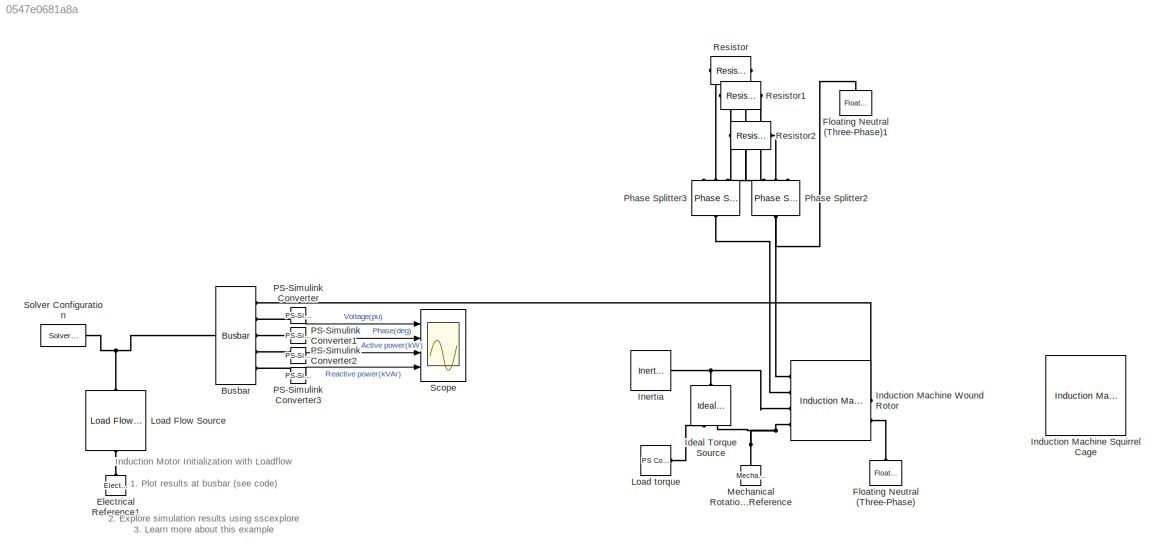
MODEL slx_0547e0681a8a
KIND model
CONFIG AbsTol = auto
CONFIG EnableMultiTasking = off
CONFIG FixedStep = auto
CONFIG MaxStep = auto
CONFIG MinStep = auto
CONFIG RelTol = 1e-3
CONFIG SampleTimeConstraint = Unconstrained
CONFIG SolverName = VariableStepAuto
CONFIG StartTime = 0.0
CONFIG StopTime = 1
BLOCK [Reference] Busbar  REF=ee_lib/Connectors &
References/Busbar
  AttributesFormatString = %<Tag>
  Ports = [0, 0, 0, 0, 0, 1, 5]
  SourceBlock = ee_lib/Connectors &\nReferences/Busbar
  SourceProductBaseCode = PS
  SourceType = Busbar
BLOCK [Reference] Electrical Reference1  REF=fl_lib/Electrical/Electrical Elements/Electrical Reference
  NameLocation = right
  Ports = [0, 0, 0, 0, 0, 1]
  SourceBlock = fl_lib/Electrical/Electrical Elements/Electrical Reference
  SourceProductBaseCode = SS
  SourceType = Electrical Reference
BLOCK [Reference] Floating Neutral (Three-Phase)  REF=ee_lib/Connectors &
References/Floating Neutral
(Three-Phase)
  NameLocation = right
  Ports = [0, 0, 0, 0, 0, 1]
  SourceBlock = ee_lib/Connectors &\nReferences/Floating Neutral\n(Three-Phase)
  SourceProductBaseCode = PS
  SourceType = Floating Neutral\n(Three-Phase)
BLOCK [Reference] Floating Neutral (Three-Phase)1  REF=ee_lib/Connectors &
References/Floating Neutral
(Three-Phase)
  NameLocation = right
  Ports = [0, 0, 0, 0, 0, 1]
  SourceBlock = ee_lib/Connectors &\nReferences/Floating Neutral\n(Three-Phase)
  SourceProductBaseCode = PS
  SourceType = Floating Neutral\n(Three-Phase)
BLOCK [Reference] Ideal Torque Source  REF=fl_lib/Mechanical/Mechanical Sources/Ideal Torque Source
  NameLocation = right
  Ports = [0, 0, 0, 0, 0, 1, 2]
  SourceBlock = fl_lib/Mechanical/Mechanical Sources/Ideal Torque Source
  SourceProductBaseCode = SS
  SourceType = Ideal Torque Source
BLOCK [Reference] Induction Machine Squirrel Cage  REF=ee_lib/Electromechanical/Asynchronous/Induction Machine
Squirrel Cage
  Commented = on
  Ports = [0, 0, 0, 0, 0, 2, 3]
  SourceBlock = ee_lib/Electromechanical/Asynchronous/Induction Machine\nSquirrel Cage
  SourceProductBaseCode = PS
  SourceType = Induction Machine\nSquirrel Cage
BLOCK [Reference] Induction Machine Wound Rotor  REF=ee_lib/Electromechanical/Asynchronous/Induction Machine
Wound Rotor
  Ports = [0, 0, 0, 0, 0, 4, 3]
  SourceBlock = ee_lib/Electromechanical/Asynchronous/Induction Machine\nWound Rotor
  SourceProductBaseCode = PS
  SourceType = Induction Machine\nWound Rotor
BLOCK [Reference] Inertia  REF=fl_lib/Mechanical/Rotational Elements/Inertia
  Ports = [0, 0, 0, 0, 0, 1]
  SourceBlock = fl_lib/Mechanical/Rotational Elements/Inertia
  SourceProductBaseCode = SS
  SourceType = Inertia
BLOCK [Reference] Load Flow Source  REF=ee_lib/Sources/Load Flow Source
  NameLocation = left
  Ports = [0, 0, 0, 0, 0, 1, 1]
  SourceBlock = ee_lib/Sources/Load Flow Source
  SourceProductBaseCode = PS
  SourceType = Load Flow Source
BLOCK [Reference] Load torque  REF=fl_lib/Physical Signals/Sources/PS Constant
  Ports = [0, 0, 0, 0, 0, 0, 1]
  SourceBlock = fl_lib/Physical Signals/Sources/PS Constant
  SourceProductBaseCode = SS
  SourceType = PS Constant
BLOCK [Reference] Mechanical Rotational Reference  REF=fl_lib/Mechanical/Rotational Elements/Mechanical
Rotational Reference
  NameLocation = right
  Ports = [0, 0, 0, 0, 0, 1]
  SourceBlock = fl_lib/Mechanical/Rotational Elements/Mechanical\nRotational Reference
  SourceProductBaseCode = SS
  SourceType = Mechanical\nRotational Reference
BLOCK [Reference] PS-Simulink Converter  REF=nesl_utility/PS-Simulink
Converter
  Ports = [0, 1, 0, 0, 0, 1]
  SourceBlock = nesl_utility/PS-Simulink\nConverter
  SourceProductBaseCode = PW,SS
  SourceType = PS-Simulink\nConverter
BLOCK [Reference] PS-Simulink Converter1  REF=nesl_utility/PS-Simulink
Converter
  Ports = [0, 1, 0, 0, 0, 1]
  SourceBlock = nesl_utility/PS-Simulink\nConverter
  SourceProductBaseCode = PW,SS
  SourceType = PS-Simulink\nConverter
BLOCK [Reference] PS-Simulink Converter2  REF=nesl_utility/PS-Simulink
Converter
  Ports = [0, 1, 0, 0, 0, 1]
  SourceBlock = nesl_utility/PS-Simulink\nConverter
  SourceProductBaseCode = PW,SS
  SourceType = PS-Simulink\nConverter
BLOCK [Reference] PS-Simulink Converter3  REF=nesl_utility/PS-Simulink
Converter
  Ports = [0, 1, 0, 0, 0, 1]
  SourceBlock = nesl_utility/PS-Simulink\nConverter
  SourceProductBaseCode = PW,SS
  SourceType = PS-Simulink\nConverter
BLOCK [Reference] Phase Splitter2  REF=ee_lib/Connectors &
References/Phase Splitter
  NameLocation = right
  Ports = [0, 0, 0, 0, 0, 1, 3]
  SourceBlock = ee_lib/Connectors &\nReferences/Phase Splitter
  SourceProductBaseCode = PS
  SourceType = Phase Splitter
BLOCK [Reference] Phase Splitter3  REF=ee_lib/Connectors &
References/Phase Splitter
  NameLocation = right
  Ports = [0, 0, 0, 0, 0, 1, 3]
  SourceBlock = ee_lib/Connectors &\nReferences/Phase Splitter
  SourceProductBaseCode = PS
  SourceType = Phase Splitter
BLOCK [Reference] Resistor  REF=ee_lib/Passive/Resistor
  Ports = [0, 0, 0, 0, 0, 1, 1]
  SourceBlock = ee_lib/Passive/Resistor
  SourceProductBaseCode = PS
  SourceType = Resistor
BLOCK [Reference] Resistor1  REF=ee_lib/Passive/Resistor
  Ports = [0, 0, 0, 0, 0, 1, 1]
  SourceBlock = ee_lib/Passive/Resistor
  SourceProductBaseCode = PS
  SourceType = Resistor
BLOCK [Reference] Resistor2  REF=ee_lib/Passive/Resistor
  Ports = [0, 0, 0, 0, 0, 1, 1]
  SourceBlock = ee_lib/Passive/Resistor
  SourceProductBaseCode = PS
  SourceType = Resistor
BLOCK [Scope] Scope
  Floating = off
  NumInputPorts = 4
  Ports = [4]
  ScopeSpecificationString = Simulink.scopes.TimeScopeBlockCfg('CurrentConfiguration', extmgr.ConfigurationSet(extmgr.Configuration('Core','General UI',true),extmgr.Configuration('Core','Source UI',true),extmgr.Configuration('Sources','WiredSimulink',true),extmgr.Configuration('Visuals','Time Domain',true,'SerializedDisplays',{struct('MinYLimReal','0.9799999999999991','MaxYLimReal','0.9800000000000011','YLabelReal','','MinYLi...<+3516ch>
BLOCK [Reference] Solver Configuration  REF=nesl_utility/Solver
Configuration
  Ports = [0, 0, 0, 0, 0, 0, 1]
  SourceBlock = nesl_utility/Solver\nConfiguration
  SourceProductBaseCode = PW,SS
  SourceType = Solver\nConfiguration
ANNOTATION (root): 1. Plot results at busbar ( see code ) 2. Explore simulation results using sscexplore 3. Learn more about this example
ANNOTATION (root): Induction Motor Initialization with Loadflow
LINE PS-Simulink Converter1:1 -> Scope:2
LINE PS-Simulink Converter2:1 -> Scope:3
LINE PS-Simulink Converter3:1 -> Scope:4
LINE PS-Simulink Converter:1 -> Scope:1
PNET net1: Busbar:LConn1 -- Load Flow Source:LConn1 -- Solver Configuration:RConn1
PLINE Busbar:RConn1 -- Induction Machine Wound Rotor:RConn2
PLINE Busbar:RConn2 -- PS-Simulink Converter:LConn1
PLINE Busbar:RConn3 -- PS-Simulink Converter1:LConn1
PLINE Busbar:RConn4 -- PS-Simulink Converter2:LConn1
PLINE Busbar:RConn5 -- PS-Simulink Converter3:LConn1
PLINE Electrical Reference1:LConn1 -- Load Flow Source:RConn1
PNET net2: Floating Neutral (Three-Phase)1:LConn1 -- Induction Machine Wound Rotor:LConn1 -- Phase Splitter2:LConn1
PLINE Floating Neutral (Three-Phase):LConn1 -- Induction Machine Wound Rotor:RConn3
PNET net3: Ideal Torque Source:LConn1 -- Induction Machine Wound Rotor:LConn3 -- Inertia:LConn1
PLINE Ideal Torque Source:RConn1 -- Load torque:RConn1
PNET net4: Ideal Torque Source:RConn2 -- Induction Machine Wound Rotor:LConn4 -- Mechanical Rotational Reference:LConn1
PLINE Induction Machine Wound Rotor:LConn2 -- Phase Splitter3:LConn1
PLINE Phase Splitter2:RConn1 -- Resistor:RConn1
PLINE Phase Splitter2:RConn2 -- Resistor1:RConn1
PLINE Phase Splitter2:RConn3 -- Resistor2:RConn1
PLINE Phase Splitter3:RConn1 -- Resistor:LConn1
PLINE Phase Splitter3:RConn2 -- Resistor1:LConn1
PLINE Phase Splitter3:RConn3 -- Resistor2:LConn1
note: PNET lines group multi-terminal physical nets as a canonical sorted terminal list (undirected conserving connections); 2-terminal nets keep the pairwise PLINE form
